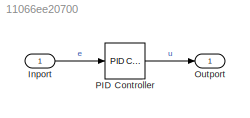
MODEL slx_11066ee20700
KIND model
CONFIG AbsTol = auto
CONFIG EnableMultiTasking = off
CONFIG FixedStep = auto
CONFIG MaxStep = auto
CONFIG MinStep = auto
CONFIG RelTol = 1e-3
CONFIG SampleTimeConstraint = Unconstrained
CONFIG SolverName = FixedStepAuto
CONFIG StartTime = 0.0
CONFIG StopTime = 10.0
BLOCK [Inport] Inport
  IconDisplay = Signal name
  OutDataTypeStr = double
  SampleTime = dt
  SignalType = real
  VarSizeSig = No
BLOCK [Outport] Outport
  IconDisplay = Signal name
  OutDataTypeStr = double
  SampleTime = dt
  SignalType = real
BLOCK [Reference] PID Controller  REF=slpidlib/PID Controller
  Ports = [1, 1]
  SourceBlock = slpidlib/PID Controller
  SourceProductBaseCode = SL
  SourceType = PID 1dof
LINE Inport:1 -> PID Controller:1
LINE PID Controller:1 -> Outport:1
